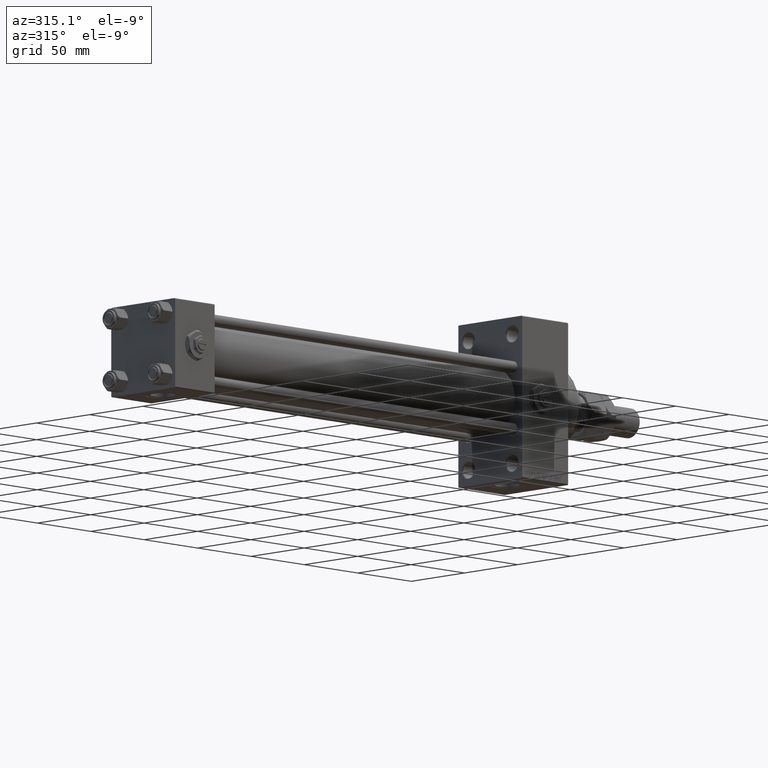
[diagram: clean part render]
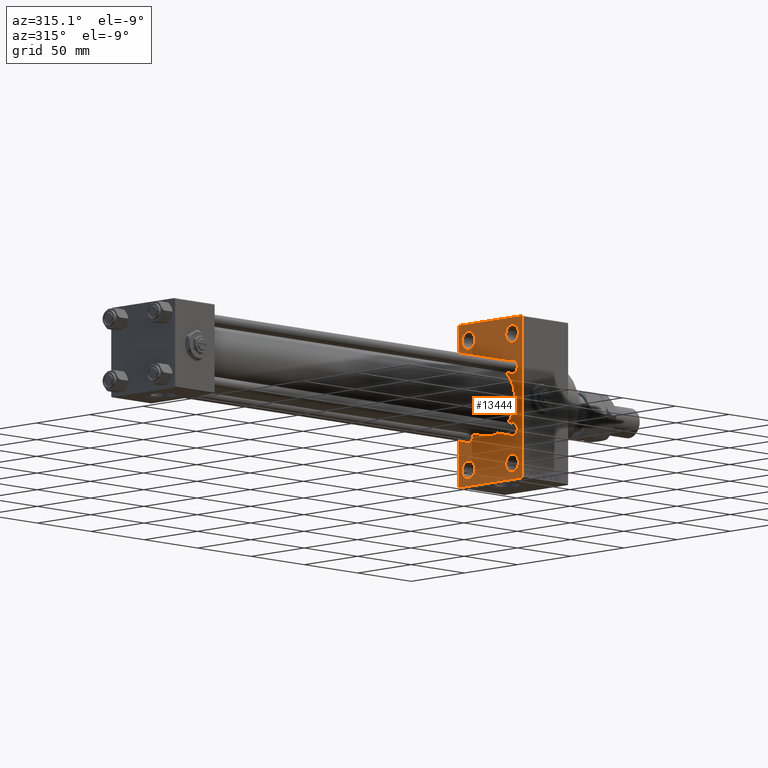
[diagram: same view with one face highlighted and labeled with its STEP entity id]
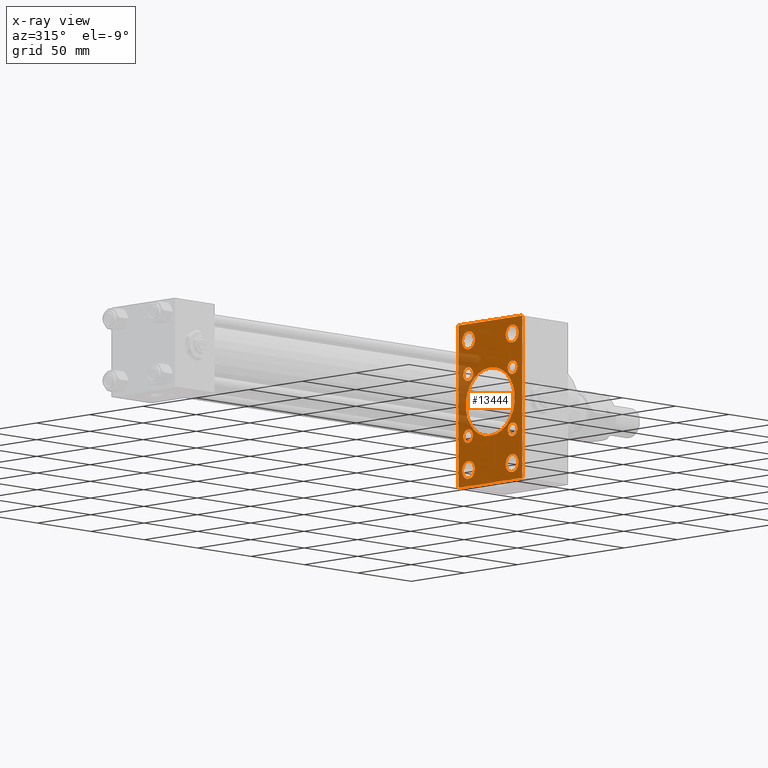
[diagram: x-ray of the same camera — body ghosted, the highlighted face saturated]
A machine part, auxiliary view. The second image highlights one B-rep face of the part: STEP entity #13444.
The next image is the same camera in x-ray: the body ghosted, the highlighted face saturated — about 13% of this face is hidden behind the body in this view.
In plain terms, the highlighted planar face has unit normal (-1, 0, 0).
Its self-contained STEP definition (entity closure, byte-faithful):
#16 = DIRECTION ( 'NONE',  ( 0.000000000000000000, 0.000000000000000000, -1.000000000000000000 ) ) ;
#525 = AXIS2_PLACEMENT_3D ( 'NONE', #22297, #21287, #21799 ) ;
#647 = LINE ( 'NONE', #31772, #7373 ) ;
#1109 = AXIS2_PLACEMENT_3D ( 'NONE', #17729, #40614, #49116 ) ;
#1248 = CARTESIAN_POINT ( 'NONE',  ( 324.9999999999999432, -20.84999999999999076, 20.85000000000000497 ) ) ;
#1421 = DIRECTION ( 'NONE',  ( 1.000000000000000000, -0.000000000000000000, 0.000000000000000000 ) ) ;
#1498 = AXIS2_PLACEMENT_3D ( 'NONE', #3603, #46346, #14689 ) ;
#1536 = CARTESIAN_POINT ( 'NONE',  ( 324.9999999999999432, 2.146024240737016609E-16, -23.00000000000000000 ) ) ;
#2499 = CIRCLE ( 'NONE', #36184, 4.500000000000007105 ) ;
#2788 = DIRECTION ( 'NONE',  ( 0.000000000000000000, 0.000000000000000000, 1.000000000000000000 ) ) ;
#3252 = LINE ( 'NONE', #46245, #40222 ) ;
#3497 = AXIS2_PLACEMENT_3D ( 'NONE', #1248, #12329, #4348 ) ;
#3545 = CARTESIAN_POINT ( 'NONE',  ( 324.9999999999999432, 20.50000000000000000, -43.50000000000000000 ) ) ;
#3600 = CARTESIAN_POINT ( 'NONE',  ( 324.9999999999999432, 42.00000000000166267, 41.99999999999699440 ) ) ;
#3603 = CARTESIAN_POINT ( 'NONE',  ( 324.9999999999999432, 20.50000000000000000, -43.50000000000000000 ) ) ;
#3656 = LINE ( 'NONE', #46647, #37612 ) ;
#3806 = LINE ( 'NONE', #4806, #12932 ) ;
#4001 = AXIS2_PLACEMENT_3D ( 'NONE', #9951, #44970, #25388 ) ;
#4051 = DIRECTION ( 'NONE',  ( 1.000000000000000000, -0.000000000000000000, 0.000000000000000000 ) ) ;
#4065 = AXIS2_PLACEMENT_3D ( 'NONE', #8169, #36215, #31838 ) ;
#4305 = FACE_BOUND ( 'NONE', #40718, .T. ) ;
#4348 = DIRECTION ( 'NONE',  ( 0.000000000000000000, 0.000000000000000000, 1.000000000000000000 ) ) ;
#4376 = ORIENTED_EDGE ( 'NONE', *, *, #6930, .T. ) ;
#4428 = ORIENTED_EDGE ( 'NONE', *, *, #17855, .T. ) ;
#4513 = EDGE_CURVE ( 'NONE', #16914, #22483, #13052, .T. ) ;
#4606 = LINE ( 'NONE', #4858, #10053 ) ;
#4662 = ORIENTED_EDGE ( 'NONE', *, *, #47508, .T. ) ;
#4806 = CARTESIAN_POINT ( 'NONE',  ( 324.9999999999999432, 29.99999999999999645, -54.49999999999999289 ) ) ;
#4851 = VERTEX_POINT ( 'NONE', #36660 ) ;
#4858 = CARTESIAN_POINT ( 'NONE',  ( 324.9999999999999432, 41.99999999999835154, -42.00000000000301981 ) ) ;
#4949 = EDGE_CURVE ( 'NONE', #23346, #37229, #39421, .T. ) ;
#5058 = FACE_OUTER_BOUND ( 'NONE', #37923, .T. ) ;
#5067 = CARTESIAN_POINT ( 'NONE',  ( 324.9999999999999432, -30.00000000000000000, 53.99999999999988631 ) ) ;
#5082 = CARTESIAN_POINT ( 'NONE',  ( 324.9999999999999432, 29.99999999999999645, 53.99999999999999289 ) ) ;
#5099 = ORIENTED_EDGE ( 'NONE', *, *, #9499, .T. ) ;
#5274 = DIRECTION ( 'NONE',  ( 0.000000000000000000, 0.000000000000000000, -1.000000000000000000 ) ) ;
#5417 = CARTESIAN_POINT ( 'NONE',  ( 324.9999999999999432, 20.50000000000000000, 49.50000000000005684 ) ) ;
#5418 = EDGE_CURVE ( 'NONE', #14263, #50133, #3252, .T. ) ;
#5700 = ORIENTED_EDGE ( 'NONE', *, *, #6561, .T. ) ;
#6037 = CARTESIAN_POINT ( 'NONE',  ( 324.9999999999999432, -2.602085213965210642E-15, 0.000000000000000000 ) ) ;
#6170 = CARTESIAN_POINT ( 'NONE',  ( 324.9999999999999432, 20.50000000000000000, 43.50000000000000000 ) ) ;
#6383 = EDGE_LOOP ( 'NONE', ( #14425, #10702 ) ) ;
#6535 = CARTESIAN_POINT ( 'NONE',  ( 324.9999999999999432, -30.00000000000000000, -53.99999999999998579 ) ) ;
#6561 = EDGE_CURVE ( 'NONE', #19871, #43566, #32061, .T. ) ;
#6642 = EDGE_LOOP ( 'NONE', ( #16709, #36587 ) ) ;
#6930 = EDGE_CURVE ( 'NONE', #7005, #4851, #2499, .T. ) ;
#7005 = VERTEX_POINT ( 'NONE', #9090 ) ;
#7242 = CARTESIAN_POINT ( 'NONE',  ( 324.9999999999999432, 20.84999999999999787, -20.85000000000000142 ) ) ;
#7373 = VECTOR ( 'NONE', #15842, 1000.000000000000000 ) ;
#7870 = CARTESIAN_POINT ( 'NONE',  ( 324.9999999999999432, 29.99999999999999645, 54.49999999999999289 ) ) ;
#8032 = EDGE_LOOP ( 'NONE', ( #4376, #18672 ) ) ;
#8169 = CARTESIAN_POINT ( 'NONE',  ( 324.9999999999999432, 0.000000000000000000, 0.000000000000000000 ) ) ;
#8691 = CIRCLE ( 'NONE', #34167, 4.500000000000007105 ) ;
#8803 = CIRCLE ( 'NONE', #27682, 4.500000000000007105 ) ;
#9090 = CARTESIAN_POINT ( 'NONE',  ( 324.9999999999999432, 20.84999999999999787, -16.34999999999999432 ) ) ;
#9499 = EDGE_CURVE ( 'NONE', #36463, #13317, #32543, .T. ) ;
#9628 = VERTEX_POINT ( 'NONE', #46627 ) ;
#9951 = CARTESIAN_POINT ( 'NONE',  ( 324.9999999999999432, 20.84999999999999787, 20.85000000000000142 ) ) ;
#10053 = VECTOR ( 'NONE', #23911, 1000.000000000000000 ) ;
#10320 = CARTESIAN_POINT ( 'NONE',  ( 324.9999999999999432, 29.49999999999999645, -54.49999999999999289 ) ) ;
#10365 = ORIENTED_EDGE ( 'NONE', *, *, #27565, .T. ) ;
#10499 = AXIS2_PLACEMENT_3D ( 'NONE', #28190, #1421, #39779 ) ;
#10506 = EDGE_CURVE ( 'NONE', #28858, #15890, #27763, .T. ) ;
#10534 = CARTESIAN_POINT ( 'NONE',  ( 324.9999999999999432, -29.49999999999994671, 54.50000000000000000 ) ) ;
#10702 = ORIENTED_EDGE ( 'NONE', *, *, #10506, .T. ) ;
#11330 = CARTESIAN_POINT ( 'NONE',  ( 324.9999999999999432, -2.602085213965210642E-15, 0.000000000000000000 ) ) ;
#11378 = EDGE_CURVE ( 'NONE', #32843, #11969, #36035, .T. ) ;
#11601 = CARTESIAN_POINT ( 'NONE',  ( 324.9999999999999432, -29.50000000000000355, -54.50000000000000000 ) ) ;
#11969 = VERTEX_POINT ( 'NONE', #38163 ) ;
#12329 = DIRECTION ( 'NONE',  ( 1.000000000000000000, -0.000000000000000000, 0.000000000000000000 ) ) ;
#12435 = CARTESIAN_POINT ( 'NONE',  ( 324.9999999999999432, 20.84999999999999787, -20.85000000000000142 ) ) ;
#12514 = VERTEX_POINT ( 'NONE', #36776 ) ;
#12617 = EDGE_CURVE ( 'NONE', #11969, #32843, #20455, .T. ) ;
#12932 = VECTOR ( 'NONE', #32348, 1000.000000000000000 ) ;
#13010 = EDGE_CURVE ( 'NONE', #23346, #50133, #647, .T. ) ;
#13052 = CIRCLE ( 'NONE', #4001, 4.500000000000007105 ) ;
#13058 = FACE_BOUND ( 'NONE', #34007, .T. ) ;
#13317 = VERTEX_POINT ( 'NONE', #44780 ) ;
#13359 = CIRCLE ( 'NONE', #3497, 4.500000000000007105 ) ;
#13444 = ADVANCED_FACE ( 'NONE', ( #40320, #44197, #35956, #28736, #39570, #27976, #47311, #13058, #4305, #5058 ), #20257, .T. ) ;
#13536 = DIRECTION ( 'NONE',  ( 1.000000000000000000, 0.000000000000000000, 0.000000000000000000 ) ) ;
#13877 = CIRCLE ( 'NONE', #39355, 4.500000000000007105 ) ;
#14263 = VERTEX_POINT ( 'NONE', #11601 ) ;
#14389 = VERTEX_POINT ( 'NONE', #48384 ) ;
#14425 = ORIENTED_EDGE ( 'NONE', *, *, #47880, .T. ) ;
#14689 = DIRECTION ( 'NONE',  ( 0.000000000000000000, 0.000000000000000000, 1.000000000000000000 ) ) ;
#14999 = ORIENTED_EDGE ( 'NONE', *, *, #25392, .T. ) ;
#15253 = DIRECTION ( 'NONE',  ( 0.000000000000000000, 0.000000000000000000, -1.000000000000000000 ) ) ;
#15306 = EDGE_CURVE ( 'NONE', #18498, #14263, #3806, .T. ) ;
#15480 = DIRECTION ( 'NONE',  ( 0.000000000000000000, 0.000000000000000000, 1.000000000000000000 ) ) ;
#15742 = DIRECTION ( 'NONE',  ( 1.000000000000000000, -0.000000000000000000, 0.000000000000000000 ) ) ;
#15842 = DIRECTION ( 'NONE',  ( 0.000000000000000000, 0.000000000000000000, -1.000000000000000000 ) ) ;
#15863 = DIRECTION ( 'NONE',  ( 1.000000000000000000, -0.000000000000000000, 0.000000000000000000 ) ) ;
#15890 = VERTEX_POINT ( 'NONE', #48910 ) ;
#15958 = LINE ( 'NONE', #3600, #46446 ) ;
#16290 = ORIENTED_EDGE ( 'NONE', *, *, #42827, .T. ) ;
#16481 = AXIS2_PLACEMENT_3D ( 'NONE', #22803, #34911, #50610 ) ;
#16709 = ORIENTED_EDGE ( 'NONE', *, *, #12617, .T. ) ;
#16817 = CARTESIAN_POINT ( 'NONE',  ( 324.9999999999999432, -20.50000000000000000, 37.49999999999993605 ) ) ;
#16914 = VERTEX_POINT ( 'NONE', #50197 ) ;
#16947 = CARTESIAN_POINT ( 'NONE',  ( 324.9999999999999432, 29.50000000000004974, 54.49999999999999289 ) ) ;
#17167 = AXIS2_PLACEMENT_3D ( 'NONE', #3545, #50906, #2788 ) ;
#17729 = CARTESIAN_POINT ( 'NONE',  ( 324.9999999999999432, -20.84999999999999076, -20.85000000000000497 ) ) ;
#17855 = EDGE_CURVE ( 'NONE', #45662, #18498, #4606, .T. ) ;
#18498 = VERTEX_POINT ( 'NONE', #10320 ) ;
#18672 = ORIENTED_EDGE ( 'NONE', *, *, #45186, .T. ) ;
#18911 = CARTESIAN_POINT ( 'NONE',  ( 324.9999999999999432, -2.602085213965210642E-15, 23.00000000000000000 ) ) ;
#19468 = LINE ( 'NONE', #7870, #23284 ) ;
#19600 = DIRECTION ( 'NONE',  ( 0.000000000000000000, 0.000000000000000000, 1.000000000000000000 ) ) ;
#19715 = CARTESIAN_POINT ( 'NONE',  ( 324.9999999999999432, -20.50000000000000000, -43.50000000000000000 ) ) ;
#19871 = VERTEX_POINT ( 'NONE', #18911 ) ;
#19992 = VERTEX_POINT ( 'NONE', #48746 ) ;
#20257 = PLANE ( 'NONE',  #4065 ) ;
#20455 = CIRCLE ( 'NONE', #17167, 6.000000000000060396 ) ;
#20499 = CIRCLE ( 'NONE', #26269, 6.000000000000060396 ) ;
#20763 = CIRCLE ( 'NONE', #46241, 6.000000000000060396 ) ;
#21287 = DIRECTION ( 'NONE',  ( 1.000000000000000000, -0.000000000000000000, 0.000000000000000000 ) ) ;
#21799 = DIRECTION ( 'NONE',  ( 0.000000000000000000, 0.000000000000000000, 1.000000000000000000 ) ) ;
#22297 = CARTESIAN_POINT ( 'NONE',  ( 324.9999999999999432, -20.84999999999999076, -20.85000000000000497 ) ) ;
#22483 = VERTEX_POINT ( 'NONE', #47565 ) ;
#22803 = CARTESIAN_POINT ( 'NONE',  ( 324.9999999999999432, -20.50000000000000000, -43.50000000000000000 ) ) ;
#23034 = AXIS2_PLACEMENT_3D ( 'NONE', #50736, #15742, #15480 ) ;
#23284 = VECTOR ( 'NONE', #27685, 1000.000000000000000 ) ;
#23346 = VERTEX_POINT ( 'NONE', #5067 ) ;
#23598 = CARTESIAN_POINT ( 'NONE',  ( 324.9999999999999432, 20.84999999999999787, 20.85000000000000142 ) ) ;
#23911 = DIRECTION ( 'NONE',  ( -0.000000000000000000, -0.7071067811865868746, -0.7071067811865081598 ) ) ;
#24345 = EDGE_CURVE ( 'NONE', #22483, #16914, #13877, .T. ) ;
#25388 = DIRECTION ( 'NONE',  ( 0.000000000000000000, 0.000000000000000000, 1.000000000000000000 ) ) ;
#25392 = EDGE_CURVE ( 'NONE', #14389, #33982, #20499, .T. ) ;
#25422 = VECTOR ( 'NONE', #31433, 1000.000000000000000 ) ;
#25970 = AXIS2_PLACEMENT_3D ( 'NONE', #19715, #15863, #39269 ) ;
#26269 = AXIS2_PLACEMENT_3D ( 'NONE', #6170, #45570, #33725 ) ;
#26360 = CARTESIAN_POINT ( 'NONE',  ( 324.9999999999999432, 29.99999999999999645, -54.00000000000004974 ) ) ;
#27056 = DIRECTION ( 'NONE',  ( 0.000000000000000000, 0.000000000000000000, 1.000000000000000000 ) ) ;
#27565 = EDGE_CURVE ( 'NONE', #13317, #36463, #40295, .T. ) ;
#27682 = AXIS2_PLACEMENT_3D ( 'NONE', #7242, #43016, #19600 ) ;
#27685 = DIRECTION ( 'NONE',  ( 0.000000000000000000, -1.000000000000000000, 1.156482317317871478E-16 ) ) ;
#27763 = CIRCLE ( 'NONE', #10499, 6.000000000000060396 ) ;
#27877 = DIRECTION ( 'NONE',  ( 0.000000000000000000, 0.000000000000000000, 1.000000000000000000 ) ) ;
#27937 = EDGE_CURVE ( 'NONE', #33982, #14389, #32065, .T. ) ;
#27976 = FACE_BOUND ( 'NONE', #33938, .T. ) ;
#28174 = ORIENTED_EDGE ( 'NONE', *, *, #13010, .F. ) ;
#28190 = CARTESIAN_POINT ( 'NONE',  ( 324.9999999999999432, -20.50000000000000000, 43.50000000000000000 ) ) ;
#28736 = FACE_BOUND ( 'NONE', #49519, .T. ) ;
#28858 = VERTEX_POINT ( 'NONE', #16817 ) ;
#29458 = ORIENTED_EDGE ( 'NONE', *, *, #5418, .T. ) ;
#29801 = ORIENTED_EDGE ( 'NONE', *, *, #24345, .T. ) ;
#29994 = ORIENTED_EDGE ( 'NONE', *, *, #15306, .T. ) ;
#30171 = ORIENTED_EDGE ( 'NONE', *, *, #27937, .T. ) ;
#31433 = DIRECTION ( 'NONE',  ( -0.000000000000000000, 0.7071067811865058284, 0.7071067811865892061 ) ) ;
#31772 = CARTESIAN_POINT ( 'NONE',  ( 324.9999999999999432, -30.00000000000000000, 54.50000000000000000 ) ) ;
#31838 = DIRECTION ( 'NONE',  ( -0.000000000000000000, 0.000000000000000000, 1.000000000000000000 ) ) ;
#32061 = CIRCLE ( 'NONE', #48552, 23.00000000000000000 ) ;
#32065 = CIRCLE ( 'NONE', #23034, 6.000000000000060396 ) ;
#32084 = DIRECTION ( 'NONE',  ( 1.000000000000000000, -0.000000000000000000, 0.000000000000000000 ) ) ;
#32348 = DIRECTION ( 'NONE',  ( 0.000000000000000000, -1.000000000000000000, -1.156482317317871478E-16 ) ) ;
#32543 = CIRCLE ( 'NONE', #25970, 6.000000000000060396 ) ;
#32843 = VERTEX_POINT ( 'NONE', #33785 ) ;
#33725 = DIRECTION ( 'NONE',  ( 0.000000000000000000, 0.000000000000000000, 1.000000000000000000 ) ) ;
#33785 = CARTESIAN_POINT ( 'NONE',  ( 324.9999999999999432, 20.50000000000000000, -49.50000000000005684 ) ) ;
#33938 = EDGE_LOOP ( 'NONE', ( #50705, #29801 ) ) ;
#33982 = VERTEX_POINT ( 'NONE', #5417 ) ;
#34006 = CIRCLE ( 'NONE', #1109, 4.500000000000007105 ) ;
#34007 = EDGE_LOOP ( 'NONE', ( #41787, #39376 ) ) ;
#34029 = CARTESIAN_POINT ( 'NONE',  ( 324.9999999999999432, -20.50000000000000000, 43.50000000000000000 ) ) ;
#34167 = AXIS2_PLACEMENT_3D ( 'NONE', #34451, #4051, #39317 ) ;
#34451 = CARTESIAN_POINT ( 'NONE',  ( 324.9999999999999432, -20.84999999999999076, 20.85000000000000497 ) ) ;
#34653 = DIRECTION ( 'NONE',  ( 0.000000000000000000, -0.7071067811865352493, 0.7071067811865597852 ) ) ;
#34911 = DIRECTION ( 'NONE',  ( 1.000000000000000000, -0.000000000000000000, 0.000000000000000000 ) ) ;
#35061 = EDGE_CURVE ( 'NONE', #43566, #19871, #40551, .T. ) ;
#35312 = CARTESIAN_POINT ( 'NONE',  ( 324.9999999999999432, -42.00000000000171951, 41.99999999999676703 ) ) ;
#35759 = DIRECTION ( 'NONE',  ( 0.000000000000000000, 0.7071067811865081598, -0.7071067811865868746 ) ) ;
#35956 = FACE_BOUND ( 'NONE', #6642, .T. ) ;
#36035 = CIRCLE ( 'NONE', #1498, 6.000000000000060396 ) ;
#36184 = AXIS2_PLACEMENT_3D ( 'NONE', #12435, #46952, #27877 ) ;
#36215 = DIRECTION ( 'NONE',  ( -1.000000000000000000, 0.000000000000000000, -0.000000000000000000 ) ) ;
#36463 = VERTEX_POINT ( 'NONE', #41111 ) ;
#36587 = ORIENTED_EDGE ( 'NONE', *, *, #11378, .T. ) ;
#36660 = CARTESIAN_POINT ( 'NONE',  ( 324.9999999999999432, 20.84999999999999787, -25.35000000000000853 ) ) ;
#36776 = CARTESIAN_POINT ( 'NONE',  ( 324.9999999999999432, -20.84999999999999076, -25.35000000000001208 ) ) ;
#37229 = VERTEX_POINT ( 'NONE', #10534 ) ;
#37400 = ORIENTED_EDGE ( 'NONE', *, *, #37617, .F. ) ;
#37499 = CIRCLE ( 'NONE', #525, 4.500000000000007105 ) ;
#37612 = VECTOR ( 'NONE', #15253, 1000.000000000000000 ) ;
#37617 = EDGE_CURVE ( 'NONE', #38154, #37229, #19468, .T. ) ;
#37705 = CARTESIAN_POINT ( 'NONE',  ( 324.9999999999999432, -20.84999999999999076, 16.34999999999999787 ) ) ;
#37923 = EDGE_LOOP ( 'NONE', ( #29994, #29458, #28174, #49206, #37400, #41035, #47752, #4428 ) ) ;
#38154 = VERTEX_POINT ( 'NONE', #16947 ) ;
#38163 = CARTESIAN_POINT ( 'NONE',  ( 324.9999999999999432, 20.50000000000000000, -37.49999999999993605 ) ) ;
#39117 = DIRECTION ( 'NONE',  ( 1.000000000000000000, 0.000000000000000000, 0.000000000000000000 ) ) ;
#39269 = DIRECTION ( 'NONE',  ( 0.000000000000000000, 0.000000000000000000, 1.000000000000000000 ) ) ;
#39317 = DIRECTION ( 'NONE',  ( 0.000000000000000000, 0.000000000000000000, 1.000000000000000000 ) ) ;
#39355 = AXIS2_PLACEMENT_3D ( 'NONE', #23598, #32084, #46796 ) ;
#39376 = ORIENTED_EDGE ( 'NONE', *, *, #49947, .T. ) ;
#39421 = LINE ( 'NONE', #35312, #25422 ) ;
#39570 = FACE_BOUND ( 'NONE', #44180, .T. ) ;
#39641 = AXIS2_PLACEMENT_3D ( 'NONE', #11330, #39117, #16 ) ;
#39779 = DIRECTION ( 'NONE',  ( 0.000000000000000000, 0.000000000000000000, 1.000000000000000000 ) ) ;
#40222 = VECTOR ( 'NONE', #34653, 1000.000000000000000 ) ;
#40295 = CIRCLE ( 'NONE', #16481, 6.000000000000060396 ) ;
#40320 = FACE_BOUND ( 'NONE', #6383, .T. ) ;
#40551 = CIRCLE ( 'NONE', #39641, 23.00000000000000000 ) ;
#40614 = DIRECTION ( 'NONE',  ( 1.000000000000000000, -0.000000000000000000, 0.000000000000000000 ) ) ;
#40718 = EDGE_LOOP ( 'NONE', ( #5700, #42305 ) ) ;
#40905 = EDGE_CURVE ( 'NONE', #38154, #48970, #15958, .T. ) ;
#41035 = ORIENTED_EDGE ( 'NONE', *, *, #40905, .T. ) ;
#41111 = CARTESIAN_POINT ( 'NONE',  ( 324.9999999999999432, -20.50000000000000000, -37.49999999999993605 ) ) ;
#41787 = ORIENTED_EDGE ( 'NONE', *, *, #44082, .T. ) ;
#42305 = ORIENTED_EDGE ( 'NONE', *, *, #35061, .T. ) ;
#42827 = EDGE_CURVE ( 'NONE', #19992, #49380, #8691, .T. ) ;
#43016 = DIRECTION ( 'NONE',  ( 1.000000000000000000, -0.000000000000000000, 0.000000000000000000 ) ) ;
#43566 = VERTEX_POINT ( 'NONE', #1536 ) ;
#43810 = EDGE_LOOP ( 'NONE', ( #5099, #10365 ) ) ;
#44082 = EDGE_CURVE ( 'NONE', #9628, #12514, #37499, .T. ) ;
#44180 = EDGE_LOOP ( 'NONE', ( #16290, #4662 ) ) ;
#44197 = FACE_BOUND ( 'NONE', #43810, .T. ) ;
#44780 = CARTESIAN_POINT ( 'NONE',  ( 324.9999999999999432, -20.50000000000000000, -49.50000000000005684 ) ) ;
#44970 = DIRECTION ( 'NONE',  ( 1.000000000000000000, -0.000000000000000000, 0.000000000000000000 ) ) ;
#45186 = EDGE_CURVE ( 'NONE', #4851, #7005, #8803, .T. ) ;
#45570 = DIRECTION ( 'NONE',  ( 1.000000000000000000, -0.000000000000000000, 0.000000000000000000 ) ) ;
#45662 = VERTEX_POINT ( 'NONE', #26360 ) ;
#46241 = AXIS2_PLACEMENT_3D ( 'NONE', #34029, #46382, #27056 ) ;
#46245 = CARTESIAN_POINT ( 'NONE',  ( 324.9999999999999432, -42.00000000000051159, -41.99999999999905498 ) ) ;
#46346 = DIRECTION ( 'NONE',  ( 1.000000000000000000, -0.000000000000000000, 0.000000000000000000 ) ) ;
#46382 = DIRECTION ( 'NONE',  ( 1.000000000000000000, -0.000000000000000000, 0.000000000000000000 ) ) ;
#46446 = VECTOR ( 'NONE', #35759, 1000.000000000000000 ) ;
#46627 = CARTESIAN_POINT ( 'NONE',  ( 324.9999999999999432, -20.84999999999999076, -16.34999999999999787 ) ) ;
#46647 = CARTESIAN_POINT ( 'NONE',  ( 324.9999999999999432, 29.99999999999999645, 54.49999999999999289 ) ) ;
#46796 = DIRECTION ( 'NONE',  ( 0.000000000000000000, 0.000000000000000000, 1.000000000000000000 ) ) ;
#46891 = EDGE_CURVE ( 'NONE', #48970, #45662, #3656, .T. ) ;
#46952 = DIRECTION ( 'NONE',  ( 1.000000000000000000, -0.000000000000000000, 0.000000000000000000 ) ) ;
#47311 = FACE_BOUND ( 'NONE', #8032, .T. ) ;
#47508 = EDGE_CURVE ( 'NONE', #49380, #19992, #13359, .T. ) ;
#47565 = CARTESIAN_POINT ( 'NONE',  ( 324.9999999999999432, 20.84999999999999787, 16.34999999999999432 ) ) ;
#47752 = ORIENTED_EDGE ( 'NONE', *, *, #46891, .T. ) ;
#47880 = EDGE_CURVE ( 'NONE', #15890, #28858, #20763, .T. ) ;
#48384 = CARTESIAN_POINT ( 'NONE',  ( 324.9999999999999432, 20.50000000000000000, 37.49999999999993605 ) ) ;
#48552 = AXIS2_PLACEMENT_3D ( 'NONE', #6037, #13536, #5274 ) ;
#48746 = CARTESIAN_POINT ( 'NONE',  ( 324.9999999999999432, -20.84999999999999076, 25.35000000000001208 ) ) ;
#48910 = CARTESIAN_POINT ( 'NONE',  ( 324.9999999999999432, -20.50000000000000000, 49.50000000000005684 ) ) ;
#48970 = VERTEX_POINT ( 'NONE', #5082 ) ;
#49116 = DIRECTION ( 'NONE',  ( 0.000000000000000000, 0.000000000000000000, 1.000000000000000000 ) ) ;
#49206 = ORIENTED_EDGE ( 'NONE', *, *, #4949, .T. ) ;
#49380 = VERTEX_POINT ( 'NONE', #37705 ) ;
#49519 = EDGE_LOOP ( 'NONE', ( #30171, #14999 ) ) ;
#49947 = EDGE_CURVE ( 'NONE', #12514, #9628, #34006, .T. ) ;
#50133 = VERTEX_POINT ( 'NONE', #6535 ) ;
#50197 = CARTESIAN_POINT ( 'NONE',  ( 324.9999999999999432, 20.84999999999999787, 25.35000000000000853 ) ) ;
#50610 = DIRECTION ( 'NONE',  ( 0.000000000000000000, 0.000000000000000000, 1.000000000000000000 ) ) ;
#50705 = ORIENTED_EDGE ( 'NONE', *, *, #4513, .T. ) ;
#50736 = CARTESIAN_POINT ( 'NONE',  ( 324.9999999999999432, 20.50000000000000000, 43.50000000000000000 ) ) ;
#50906 = DIRECTION ( 'NONE',  ( 1.000000000000000000, -0.000000000000000000, 0.000000000000000000 ) ) ;